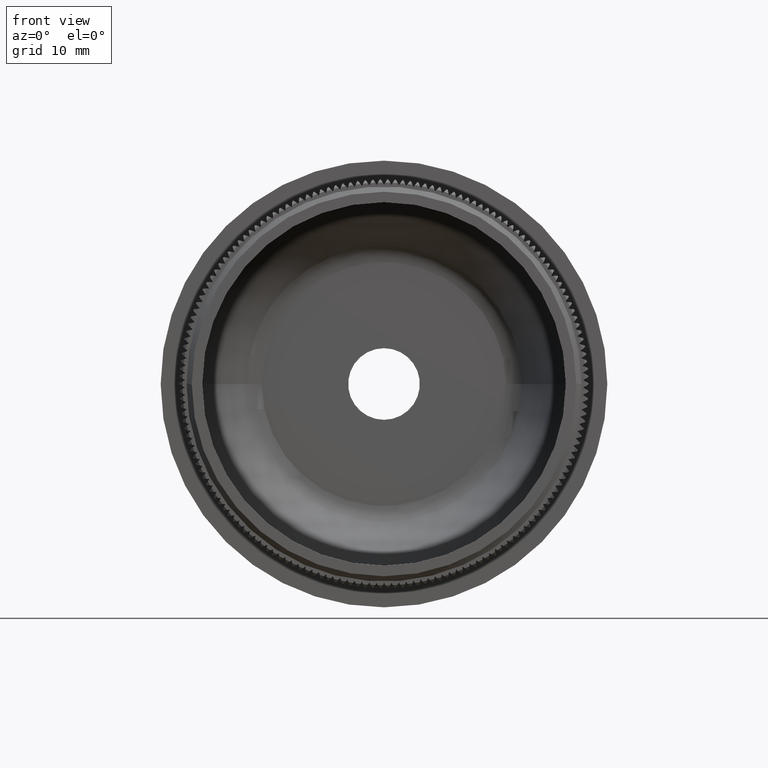
[diagram: clean part render]
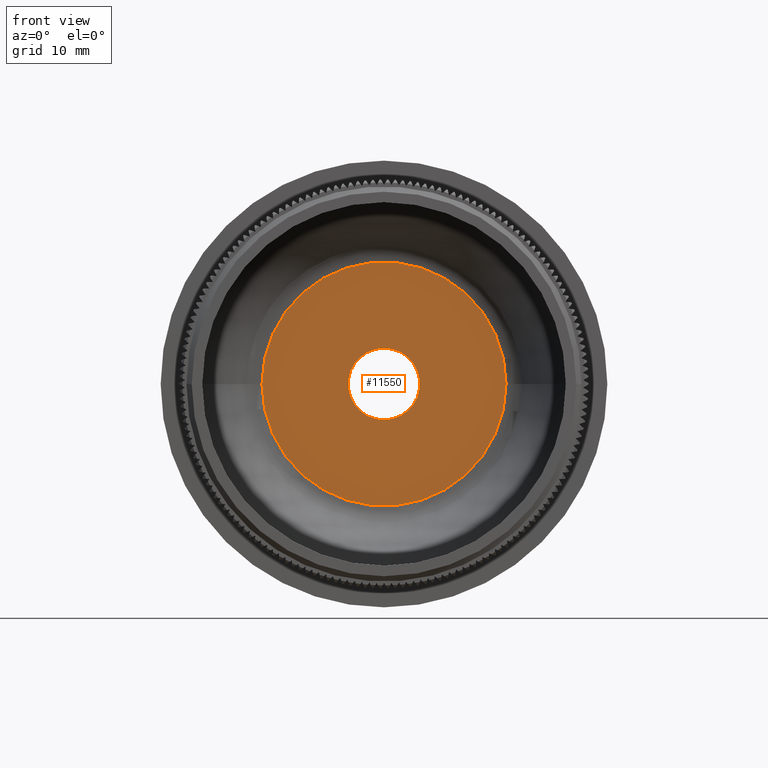
[diagram: same view with one face highlighted and labeled with its STEP entity id]
A machine part, front view. The second image highlights one B-rep face of the part: STEP entity #11550.
In plain terms, the highlighted planar face has unit normal (0, -1, 0).
Its self-contained STEP definition (entity closure, byte-faithful):
#365 = CIRCLE ( 'NONE', #21010, 3.399999999999987900 ) ;
#553 = AXIS2_PLACEMENT_3D ( 'NONE', #17149, #29148, #25686 ) ;
#2232 = CARTESIAN_POINT ( 'NONE',  ( 4.902535526863499200E-014, 27.00000000000003900, -3.399999999999987900 ) ) ;
#6026 = CARTESIAN_POINT ( 'NONE',  ( 4.860897535692489600E-014, 27.00000000000003900, 3.399999999999987900 ) ) ;
#6874 = CARTESIAN_POINT ( 'NONE',  ( 4.860897535692489600E-014, 27.00000000000003900, 0.0000000000000000000 ) ) ;
#7561 = EDGE_CURVE ( 'NONE', #8789, #28063, #12812, .T. ) ;
#8002 = DIRECTION ( 'NONE',  ( 1.224304257678195700E-016, -1.000000000000000000, 0.0000000000000000000 ) ) ;
#8789 = VERTEX_POINT ( 'NONE', #9447 ) ;
#8807 = EDGE_CURVE ( 'NONE', #28872, #37028, #365, .T. ) ;
#9447 = CARTESIAN_POINT ( 'NONE',  ( 11.58274578845616400, 27.00000000000003900, 0.0000000000000000000 ) ) ;
#9666 = ORIENTED_EDGE ( 'NONE', *, *, #8807, .F. ) ;
#10225 = PLANE ( 'NONE',  #35630 ) ;
#11141 = DIRECTION ( 'NONE',  ( 1.224304257678195700E-016, -1.000000000000000000, 0.0000000000000000000 ) ) ;
#11550 = ADVANCED_FACE ( 'NONE', ( #17137, #18081 ), #10225, .T. ) ;
#11917 = EDGE_CURVE ( 'NONE', #37028, #28872, #29587, .T. ) ;
#12812 = CIRCLE ( 'NONE', #23966, 11.58274578845616700 ) ;
#13070 = AXIS2_PLACEMENT_3D ( 'NONE', #19759, #8002, #16902 ) ;
#16731 = ORIENTED_EDGE ( 'NONE', *, *, #11917, .F. ) ;
#16902 = DIRECTION ( 'NONE',  ( 1.000000000000000000, 0.0000000000000000000, 0.0000000000000000000 ) ) ;
#17137 = FACE_BOUND ( 'NONE', #24281, .T. ) ;
#17149 = CARTESIAN_POINT ( 'NONE',  ( 4.860897535692489600E-014, 27.00000000000003900, 0.0000000000000000000 ) ) ;
#18081 = FACE_OUTER_BOUND ( 'NONE', #28693, .T. ) ;
#19759 = CARTESIAN_POINT ( 'NONE',  ( -3.306125031690794000E-015, 27.00000000000003900, 0.0000000000000000000 ) ) ;
#21010 = AXIS2_PLACEMENT_3D ( 'NONE', #6874, #22096, #27504 ) ;
#22096 = DIRECTION ( 'NONE',  ( 1.224304257678195700E-016, -1.000000000000000000, 0.0000000000000000000 ) ) ;
#23966 = AXIS2_PLACEMENT_3D ( 'NONE', #26106, #31491, #34476 ) ;
#24281 = EDGE_LOOP ( 'NONE', ( #9666, #16731 ) ) ;
#25686 = DIRECTION ( 'NONE',  ( 1.000000000000000000, 0.0000000000000000000, 0.0000000000000000000 ) ) ;
#26025 = ORIENTED_EDGE ( 'NONE', *, *, #29502, .T. ) ;
#26106 = CARTESIAN_POINT ( 'NONE',  ( -3.306125031690794000E-015, 27.00000000000003900, 0.0000000000000000000 ) ) ;
#27261 = CIRCLE ( 'NONE', #13070, 11.58274578845616700 ) ;
#27504 = DIRECTION ( 'NONE',  ( 1.000000000000000000, 0.0000000000000000000, 0.0000000000000000000 ) ) ;
#28063 = VERTEX_POINT ( 'NONE', #31947 ) ;
#28693 = EDGE_LOOP ( 'NONE', ( #30436, #26025 ) ) ;
#28872 = VERTEX_POINT ( 'NONE', #6026 ) ;
#29148 = DIRECTION ( 'NONE',  ( 1.224304257678195700E-016, -1.000000000000000000, 0.0000000000000000000 ) ) ;
#29502 = EDGE_CURVE ( 'NONE', #28063, #8789, #27261, .T. ) ;
#29587 = CIRCLE ( 'NONE', #553, 3.399999999999987900 ) ;
#30436 = ORIENTED_EDGE ( 'NONE', *, *, #7561, .T. ) ;
#31491 = DIRECTION ( 'NONE',  ( 1.224304257678195700E-016, -1.000000000000000000, 0.0000000000000000000 ) ) ;
#31757 = DIRECTION ( 'NONE',  ( 1.000000000000000000, 1.224304257678195700E-016, 0.0000000000000000000 ) ) ;
#31879 = CARTESIAN_POINT ( 'NONE',  ( 4.163799117100980800E-016, 27.00000000000003900, 0.0000000000000000000 ) ) ;
#31947 = CARTESIAN_POINT ( 'NONE',  ( -11.58274578845617100, 27.00000000000003900, 1.509991917163293400E-015 ) ) ;
#34476 = DIRECTION ( 'NONE',  ( 1.000000000000000000, 0.0000000000000000000, 0.0000000000000000000 ) ) ;
#35630 = AXIS2_PLACEMENT_3D ( 'NONE', #31879, #11141, #31757 ) ;
#37028 = VERTEX_POINT ( 'NONE', #2232 ) ;